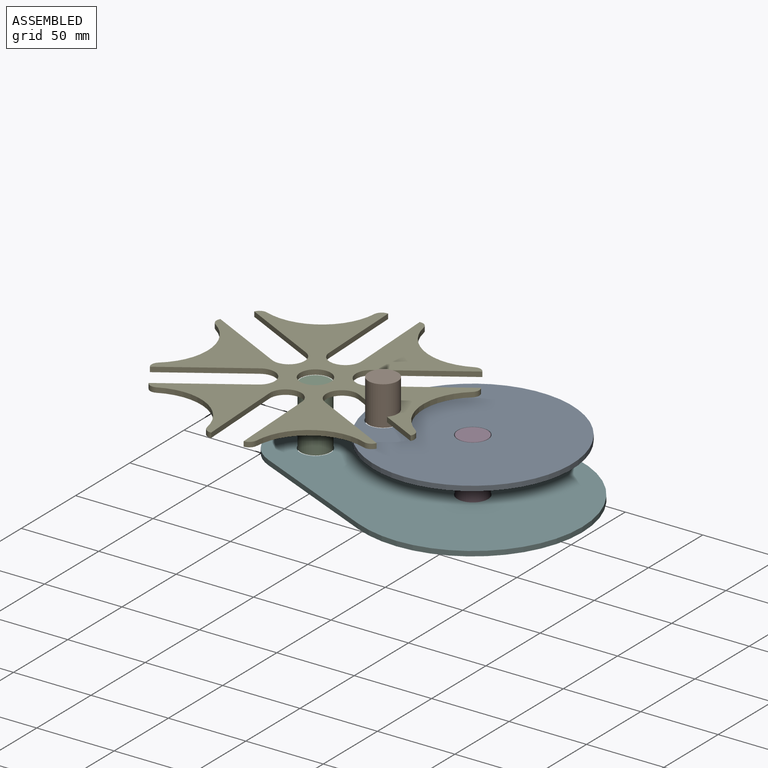
[diagram: assembled view]
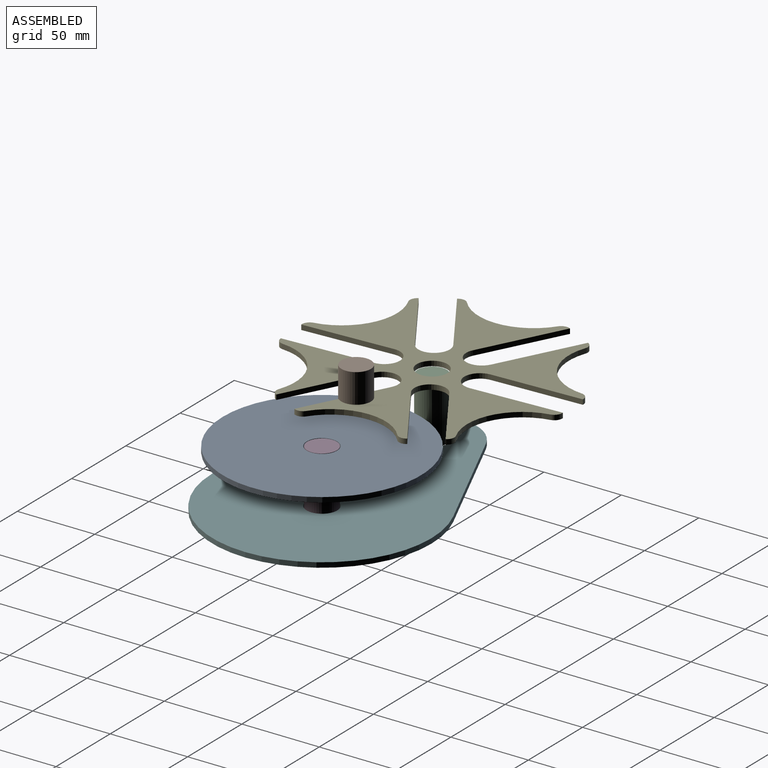
[diagram: assembled view, second angle]
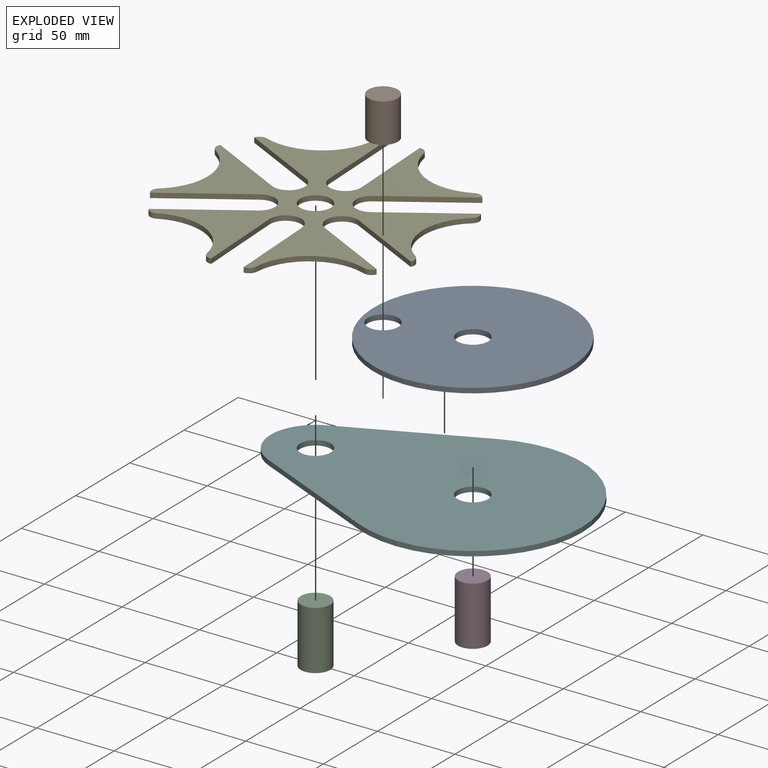
[diagram: exploded view]
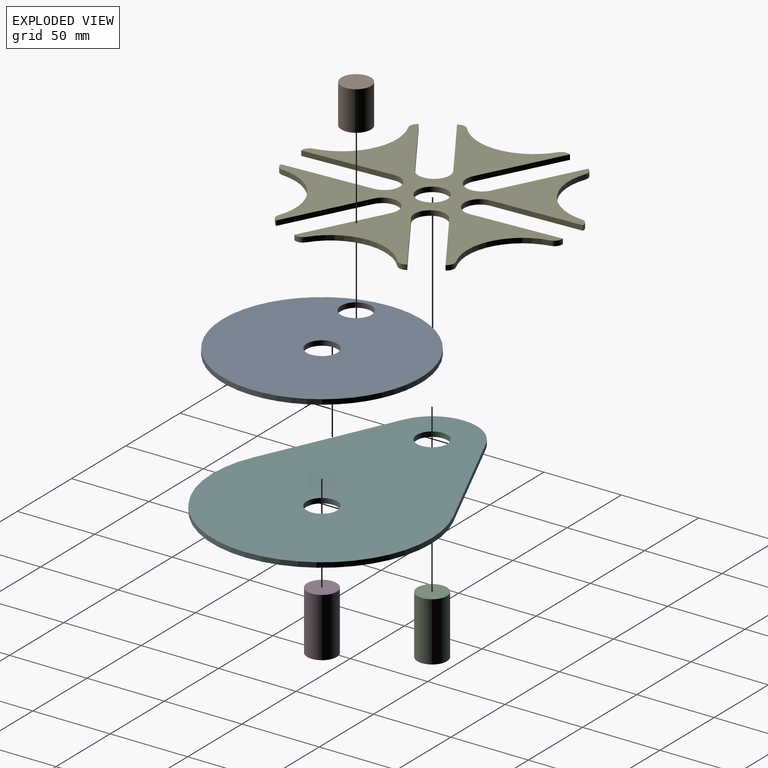
[diagram: exploded view, second angle]
ASSEMBLY  parts=6 mates=5
PART A: 5 faces, bbox 127.9x127.9x3.2 mm
  f0: cylinder r=63.96mm len=127.92mm, axis (0,0,-1), area 1275.9mm2, adj f3,f4
  f1: cylinder r=9.91mm len=19.81mm, axis (0,0,-1), area 197.6mm2, adj f3,f4
  f2: cylinder r=9.91mm len=19.81mm, axis (0,0,-1), area 197.6mm2, adj f3,f4
  f3: plane 127.92x127.92mm, normal (0,0,1), area 12234.6mm2, adj f0,f1,f2
  f4: plane 127.92x127.92mm, normal (0,0,-1), area 12234.6mm2, adj f0,f1,f2
PART B: 3 faces, bbox 19.1x19.1x25.4 mm
  f0: cylinder r=9.53mm len=25.4mm, axis (0,0,-1), area 1520.1mm2, adj f1,f2
  f1: plane 19.05x19.05mm, normal (0,0,1), area 285mm2, adj f0
  f2: plane 19.05x19.05mm, normal (0,0,-1), area 285mm2, adj f0
PART C: 3 faces, bbox 19.1x19.1x38.1 mm
  f0: cylinder r=9.53mm len=38.1mm, axis (0,0,-1), area 2280.2mm2, adj f1,f2
  f1: plane 19.05x19.05mm, normal (0,0,1), area 285mm2, adj f0
  f2: plane 19.05x19.05mm, normal (0,0,-1), area 285mm2, adj f0
PART D: same geometry as C
PART E: 53 faces, bbox 164.2x176x3.2 mm
  f0: plane 58.14x3.18mm, normal (1,0,0), area 184.6mm2, adj f1,f38,f39,f40
  f1: cylinder r=10.16mm len=20.32mm, axis (0,0,-1), area 101.3mm2, adj f0,f2,f39,f40
  f2: plane 58.14x3.18mm, normal (-1,0,0), area 184.6mm2, adj f1,f3,f39,f40
  f3: plane 3.18x0.32mm, normal (0,-1,0), area 1mm2, adj f2,f39,f40,f41
  f4: cylinder r=35.56mm len=49.07mm, axis (0,0,-1), area 208.2mm2, adj f39,f40,f41,f42
  f5: plane 3.18x0.28mm, normal (0.87,-0.5,0), area 1mm2, adj f6,f39,f40,f42
  f6: plane 50.09x28.92mm, normal (0.5,0.87,0), area 183.6mm2, adj f5,f7,f39,f40
  f7: cylinder r=10.16mm len=19.11mm, axis (0,0,-1), area 104.4mm2, adj f6,f8,f39,f40
  f8: plane 49.77x28.73mm, normal (-0.5,-0.87,0), area 182.5mm2, adj f7,f9,f39,f40
  f9: plane 3.18x0.3mm, normal (0.87,-0.5,0), area 1.1mm2, adj f8,f39,f40,f43
  f10: cylinder r=35.56mm len=56.6mm, axis (0,0,-1), area 207.8mm2, adj f39,f40,f43,f44
  f11: plane 3.18x0.27mm, normal (0.86,0.5,0), area 1mm2, adj f12,f39,f40,f44
  f12: plane 50.2x28.98mm, normal (-0.5,0.87,0), area 184.1mm2, adj f11,f13,f39,f40
  f13: cylinder r=10.16mm len=18.98mm, axis (0,0,-1), area 101.5mm2, adj f12,f14,f39,f40
  f14: plane 3.18x0.04mm, normal (0.49,-0.87,0), area 0.2mm2, adj f13,f15,f39,f40
  f15: plane 3.18x0.04mm, normal (0.49,-0.87,0), area 0.2mm2, adj f14,f16,f39,f40
  f16: plane 50.46x28.51mm, normal (0.49,-0.87,0), area 184mm2, adj f15,f17,f39,f40
  f17: plane 3.18x0.74mm, normal (0.87,0.5,0), area 2.7mm2, adj f16,f39,f40,f45
  f18: cylinder r=35.56mm len=49.07mm, axis (0,0,-1), area 208.2mm2, adj f39,f40,f45,f46
  f19: plane 3.18x0.32mm, normal (0,1,0), area 1mm2, adj f20,f39,f40,f46
  f20: plane 58.14x3.18mm, normal (-1,0,0), area 184.6mm2, adj f19,f21,f39,f40
  f21: cylinder r=10.16mm len=20.32mm, axis (0,0,-1), area 101.3mm2, adj f20,f22,f39,f40
  f22: plane 58.14x3.18mm, normal (1,0,0), area 184.6mm2, adj f21,f23,f39,f40
  f23: plane 3.18x0.32mm, normal (0,1,0), area 1mm2, adj f22,f39,f40,f47
  f24: cylinder r=35.56mm len=49.07mm, axis (0,0,-1), area 208.2mm2, adj f39,f40,f47,f48
  f25: plane 3.18x0.28mm, normal (-0.87,0.5,0), area 1mm2, adj f26,f39,f40,f48
  f26: plane 50.28x29.03mm, normal (-0.5,-0.87,0), area 184.3mm2, adj f25,f27,f39,f40
  f27: cylinder r=10.16mm len=19mm, axis (0,0,-1), area 101.6mm2, adj f26,f28,f39,f40
  f28: plane 50.35x29.07mm, normal (0.5,0.87,0), area 184.6mm2, adj f27,f29,f39,f40
  f29: plane 3.18x0.28mm, normal (-0.87,0.5,0), area 1mm2, adj f28,f39,f40,f49
  f30: cylinder r=35.56mm len=56.66mm, axis (0,0,-1), area 208.2mm2, adj f39,f40,f49,f50
  f31: plane 3.18x0.28mm, normal (-0.87,-0.5,0), area 1mm2, adj f32,f39,f40,f50
  f32: plane 50.35x29.07mm, normal (0.5,-0.87,0), area 184.6mm2, adj f31,f33,f39,f40
  f33: cylinder r=10.16mm len=18.96mm, axis (0,0,-1), area 101.3mm2, adj f32,f34,f39,f40
  f34: plane 50.35x29.07mm, normal (-0.5,0.87,0), area 184.6mm2, adj f33,f35,f39,f40
  f35: plane 3.18x0.28mm, normal (-0.87,-0.5,0), area 1mm2, adj f34,f39,f40,f51
  f36: cylinder r=35.56mm len=49.07mm, axis (0,0,-1), area 208.2mm2, adj f39,f40,f51,f52
  f37: cylinder r=9.91mm len=19.81mm, axis (0,0,-1), area 197.6mm2, adj f39,f40
  f38: plane 3.18x0.32mm, normal (0,-1,0), area 1mm2, adj f0,f39,f40,f52
  f39: plane 175.98x164.24mm, normal (0,0,1), area 10466.7mm2, adj f0,f1,f2,f3,f4,f5,f6,f7
  f40: plane 175.98x164.24mm, normal (0,0,-1), area 10466.7mm2, adj f0,f1,f2,f3,f4,f5,f6,f7
  f41: cylinder r=5.08mm len=5.04mm, axis (0,0,-1), area 23.3mm2, adj f3,f4,f39,f40
  f42: cylinder r=5.08mm len=6.37mm, axis (0,0,-1), area 23.3mm2, adj f4,f5,f39,f40
  f43: cylinder r=5.08mm len=6.59mm, axis (0,0,-1), area 23.3mm2, adj f9,f10,f39,f40
  f44: cylinder r=5.08mm len=6.59mm, axis (0,0,-1), area 23.3mm2, adj f10,f11,f39,f40
  f45: cylinder r=5.08mm len=6.37mm, axis (0,0,-1), area 23.3mm2, adj f17,f18,f39,f40
  f46: cylinder r=5.08mm len=5.04mm, axis (0,0,-1), area 23.3mm2, adj f18,f19,f39,f40
  f47: cylinder r=5.08mm len=5.04mm, axis (0,0,-1), area 23.3mm2, adj f23,f24,f39,f40
  f48: cylinder r=5.08mm len=6.37mm, axis (0,0,-1), area 23.3mm2, adj f24,f25,f39,f40
  f49: cylinder r=5.08mm len=6.59mm, axis (0,0,-1), area 23.3mm2, adj f29,f30,f39,f40
  f50: cylinder r=5.08mm len=6.59mm, axis (0,0,-1), area 23.3mm2, adj f30,f31,f39,f40
  f51: cylinder r=5.08mm len=6.37mm, axis (0,0,-1), area 23.3mm2, adj f35,f36,f39,f40
  f52: cylinder r=5.08mm len=5.04mm, axis (0,0,-1), area 23.3mm2, adj f36,f38,f39,f40
PART F: 8 faces, bbox 201.3x141.4x3.2 mm
  f0: plane 84.45x38.05mm, normal (-0.41,-0.91,0), area 294.1mm2, adj f1,f4,f6,f7
  f1: cylinder r=70.71mm len=141.41mm, axis (0,0,-1), area 895.3mm2, adj f0,f2,f6,f7
  f2: plane 84.45x38.05mm, normal (-0.41,0.91,0), area 294.1mm2, adj f1,f4,f6,f7
  f3: cylinder r=9.91mm len=19.81mm, axis (0,0,-1), area 197.6mm2, adj f6,f7
  f4: cylinder r=28.97mm len=52.82mm, axis (0,0,-1), area 211.1mm2, adj f0,f2,f6,f7
  f5: cylinder r=9.91mm len=19.81mm, axis (0,0,-1), area 197.6mm2, adj f6,f7
  f6: plane 201.27x141.41mm, normal (0,0,1), area 19548.8mm2, adj f0,f1,f2,f3,f4,f5
  f7: plane 201.27x141.41mm, normal (0,0,-1), area 19548.8mm2, adj f0,f1,f2,f3,f4,f5
PLACE A rot(axis=(0,0,1),134.3deg) t=(91.02,-19.98,27.59)mm
PLACE B rot(axis=(0,0,1),134.3deg) t=(-128.01,87.36,30.76)mm
PLACE C t=(-15.04,113.64,-4.16)mm
PLACE D t=(86.56,113.64,-7.34)mm
PLACE E rot(axis=(0,0,1),63deg) t=(-72.05,180.73,33.94)mm
PLACE F t=(-16.55,90.19,-7.34)mm fixed
MATE fastened C.f0 <-> F.f4  axis (0,0,-1) through (-118.15,90.19,-4.16)mm
MATE fastened D.f0 <-> F.f1  axis (0,0,-1) through (-16.55,90.19,-7.34)mm
MATE fastened A.f2 <-> B.f0  axis (0,0,1) through (-65.81,77.78,30.76)mm
MATE revolute D.f0 <-> A.f0  axis (0,0,1) through (-16.55,90.19,30.76)mm
MATE revolute C.f0 <-> E.f37  axis (0,0,1) through (-118.15,90.19,33.94)mm
